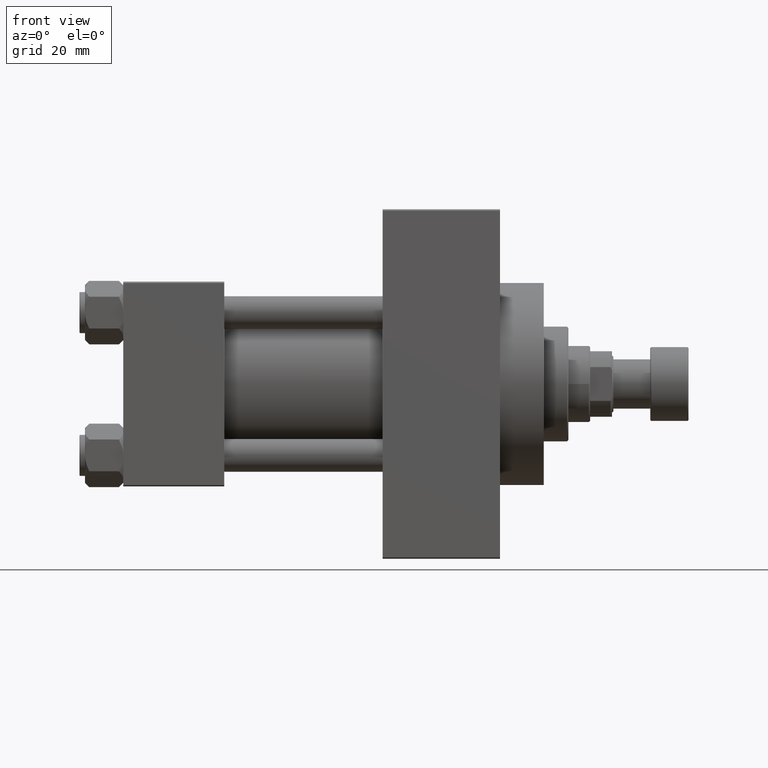
[diagram: clean part render]
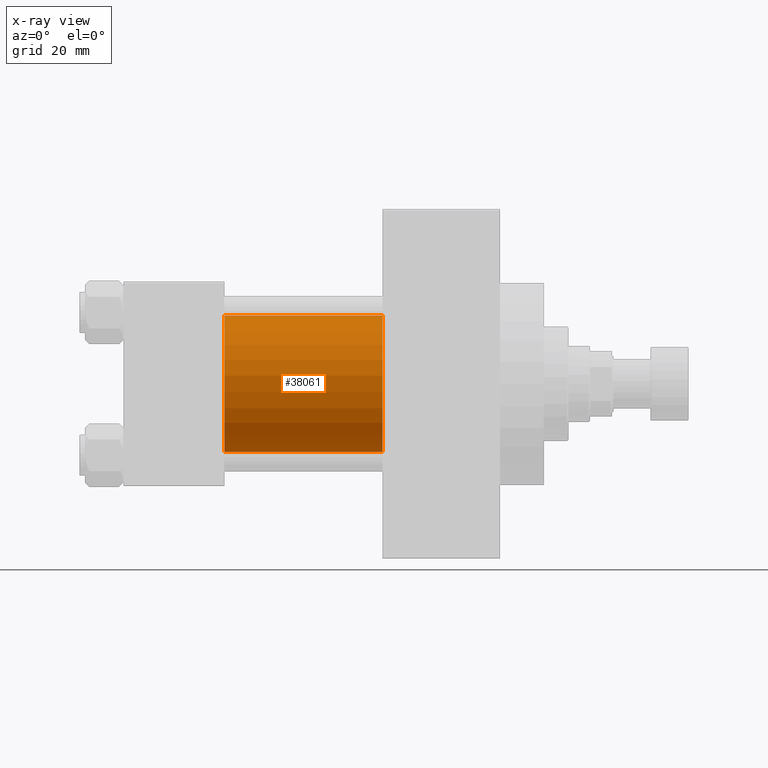
[diagram: x-ray — body ghosted, one internal face saturated and labeled with its STEP entity id]
A machine part, front view, then the same camera in x-ray: the body is ghosted and one INTERNAL B-rep face — a face not visible from any outside direction — is saturated and labeled: STEP entity #38061.
In plain terms, the highlighted cylindrical surface (partial cylindrical patch) has radius 25 mm, axis along (-1, -0, -0).
Its self-contained STEP definition (entity closure, byte-faithful):
#454 = VERTEX_POINT ( 'NONE', #7598 ) ;
#683 = ORIENTED_EDGE ( 'NONE', *, *, #45245, .T. ) ;
#4930 = AXIS2_PLACEMENT_3D ( 'NONE', #13051, #27758, #8501 ) ;
#7070 = VECTOR ( 'NONE', #14946, 1000.000000000000000 ) ;
#7598 = CARTESIAN_POINT ( 'NONE',  ( 37.00000000000000000, 4.595317839031718093E-16, -25.00000000000000000 ) ) ;
#8447 = LINE ( 'NONE', #26045, #7070 ) ;
#8492 = CARTESIAN_POINT ( 'NONE',  ( 95.00000000000000000, -2.602085213965210642E-15, 25.00000000000000000 ) ) ;
#8501 = DIRECTION ( 'NONE',  ( 0.000000000000000000, 0.000000000000000000, -1.000000000000000000 ) ) ;
#8895 = DIRECTION ( 'NONE',  ( 0.000000000000000000, 0.000000000000000000, -1.000000000000000000 ) ) ;
#9858 = DIRECTION ( 'NONE',  ( -1.000000000000000000, -0.000000000000000000, -0.000000000000000000 ) ) ;
#11065 = EDGE_CURVE ( 'NONE', #11359, #454, #8447, .T. ) ;
#11359 = VERTEX_POINT ( 'NONE', #33394 ) ;
#12540 = EDGE_CURVE ( 'NONE', #25053, #19587, #29862, .T. ) ;
#12766 = FACE_OUTER_BOUND ( 'NONE', #38220, .T. ) ;
#13051 = CARTESIAN_POINT ( 'NONE',  ( 37.00000000000000000, -2.602085213965210642E-15, 0.000000000000000000 ) ) ;
#14916 = DIRECTION ( 'NONE',  ( -1.000000000000000000, -0.000000000000000000, -0.000000000000000000 ) ) ;
#14946 = DIRECTION ( 'NONE',  ( -1.000000000000000000, -0.000000000000000000, -0.000000000000000000 ) ) ;
#15679 = CIRCLE ( 'NONE', #4930, 25.00000000000000000 ) ;
#16862 = EDGE_CURVE ( 'NONE', #19587, #454, #15679, .T. ) ;
#19492 = DIRECTION ( 'NONE',  ( 1.000000000000000000, 0.000000000000000000, 0.000000000000000000 ) ) ;
#19587 = VERTEX_POINT ( 'NONE', #26172 ) ;
#20387 = CARTESIAN_POINT ( 'NONE',  ( 95.00000000000000000, -2.602085213965210642E-15, 25.00000000000000000 ) ) ;
#20481 = CARTESIAN_POINT ( 'NONE',  ( 95.00000000000000000, -2.602085213965210642E-15, 0.000000000000000000 ) ) ;
#22697 = AXIS2_PLACEMENT_3D ( 'NONE', #20481, #9858, #45782 ) ;
#25053 = VERTEX_POINT ( 'NONE', #8492 ) ;
#26045 = CARTESIAN_POINT ( 'NONE',  ( 95.00000000000000000, 4.595317839031718093E-16, -25.00000000000000000 ) ) ;
#26172 = CARTESIAN_POINT ( 'NONE',  ( 37.00000000000000000, -2.602085213965210642E-15, 25.00000000000000000 ) ) ;
#27758 = DIRECTION ( 'NONE',  ( 1.000000000000000000, 0.000000000000000000, 0.000000000000000000 ) ) ;
#29595 = ORIENTED_EDGE ( 'NONE', *, *, #16862, .F. ) ;
#29862 = LINE ( 'NONE', #20387, #40933 ) ;
#30583 = CARTESIAN_POINT ( 'NONE',  ( 95.00000000000000000, -2.602085213965210642E-15, 0.000000000000000000 ) ) ;
#32046 = AXIS2_PLACEMENT_3D ( 'NONE', #30583, #19492, #8895 ) ;
#33394 = CARTESIAN_POINT ( 'NONE',  ( 95.00000000000000000, 4.595317839031718093E-16, -25.00000000000000000 ) ) ;
#38061 = ADVANCED_FACE ( 'NONE', ( #12766 ), #42164, .F. ) ;
#38220 = EDGE_LOOP ( 'NONE', ( #683, #41235, #29595, #46271 ) ) ;
#40933 = VECTOR ( 'NONE', #14916, 1000.000000000000000 ) ;
#41235 = ORIENTED_EDGE ( 'NONE', *, *, #11065, .T. ) ;
#42164 = CYLINDRICAL_SURFACE ( 'NONE', #22697, 25.00000000000000000 ) ;
#45245 = EDGE_CURVE ( 'NONE', #25053, #11359, #45916, .T. ) ;
#45782 = DIRECTION ( 'NONE',  ( 0.000000000000000000, 0.000000000000000000, 1.000000000000000000 ) ) ;
#45916 = CIRCLE ( 'NONE', #32046, 25.00000000000000000 ) ;
#46271 = ORIENTED_EDGE ( 'NONE', *, *, #12540, .F. ) ;